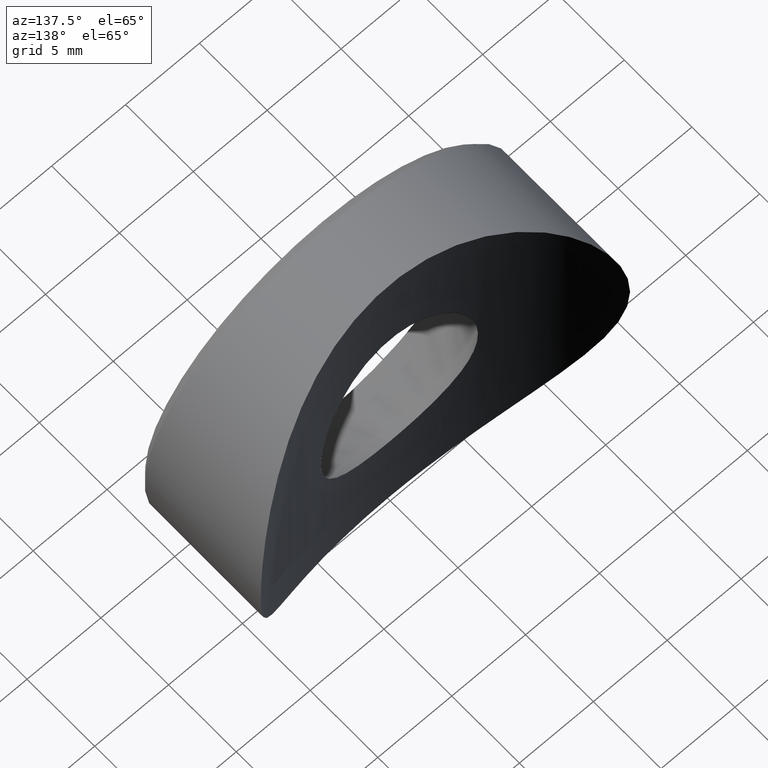
[diagram: clean part render]
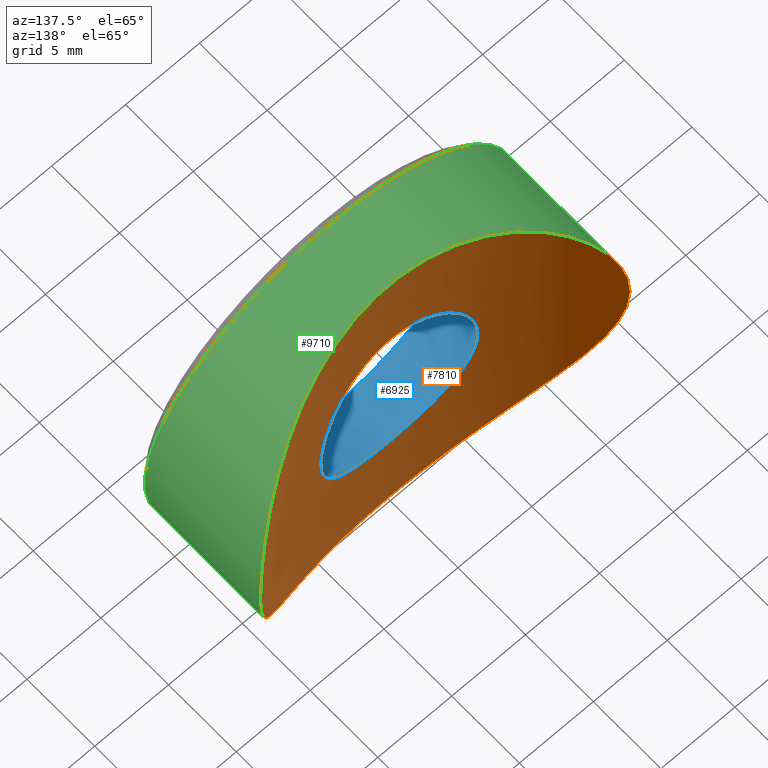
[diagram: same view with three faces highlighted in distinct colors, each labeled with its STEP entity id]
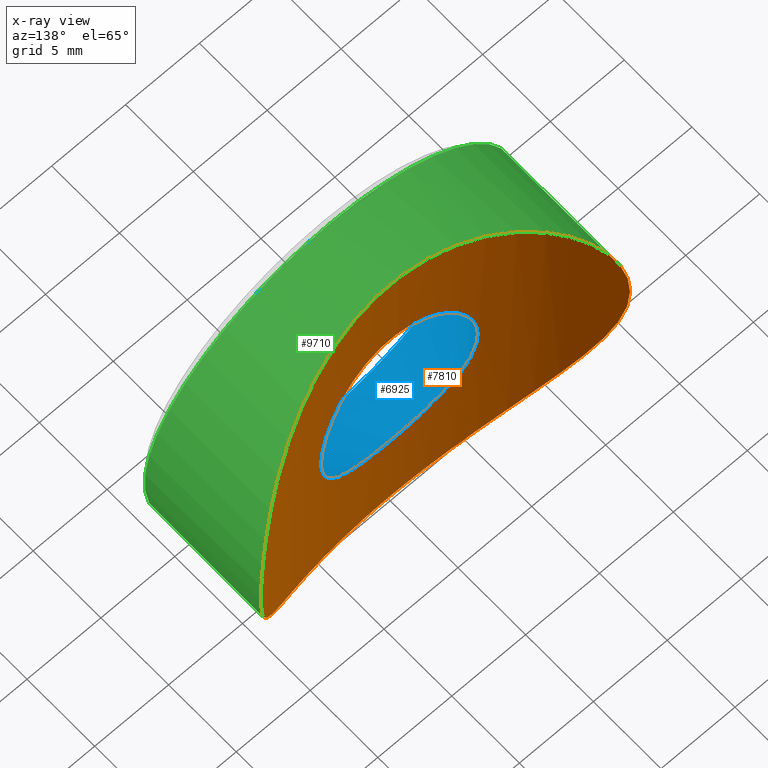
[diagram: x-ray of the same camera — body ghosted, the three highlighted faces saturated]
A machine part, auxiliary view with three faces highlighted in distinct colors.
The next image is the same camera in x-ray (body ghosted, the three faces saturated) — at least one of them is partly hidden behind the body in this view.
Their STEP definitions:

[orange] entity #7810 — the highlighted cylindrical surface (partial cylindrical patch) has radius 21.2 mm, axis along (-0, -0, 1).
#10 = CARTESIAN_POINT ( 'NONE',  ( -2.500996553080426565, 5.147402168726771698, 5.294553892242304549 ) ) ;
#35 = CARTESIAN_POINT ( 'NONE',  ( -12.41862256727138458, 9.016905337360775263, -1.651010921461087078 ) ) ;
#63 = CARTESIAN_POINT ( 'NONE',  ( -4.913531057895813348, 5.576954840356072474, 2.324377969651502340 ) ) ;
#83 = CARTESIAN_POINT ( 'NONE',  ( -12.17098533677777006, 8.841505016409652029, -2.879517635772013140 ) ) ;
#122 = CARTESIAN_POINT ( 'NONE',  ( -1.687338429905864023, 5.063100790062737389, -12.39272775788955805 ) ) ;
#173 = CARTESIAN_POINT ( 'NONE',  ( -12.32689167703546396, 8.951863577055028998, 2.114099712051316082 ) ) ;
#217 = CARTESIAN_POINT ( 'NONE',  ( -8.269473890835500995, 6.669475764084465297, 9.407568716005741294 ) ) ;
#269 = FACE_BOUND ( 'NONE', #871, .T. ) ;
#466 = CARTESIAN_POINT ( 'NONE',  ( 0.000000000000000000, 26.20000000000000284, -12.50000000000000000 ) ) ;
#759 = CARTESIAN_POINT ( 'NONE',  ( 3.530113729805322453, 5.294074132785927311, -4.497871122518575682 ) ) ;
#761 = EDGE_CURVE ( 'NONE', #6300, #6300, #12284, .T. ) ;
#821 = CARTESIAN_POINT ( 'NONE',  ( 7.669388386453538153, 6.433056659521247944, 9.878870967313789109 ) ) ;
#866 = CARTESIAN_POINT ( 'NONE',  ( 1.676423256818145857, 5.050540661257573838, -12.41481697399196449 ) ) ;
#871 = EDGE_LOOP ( 'NONE', ( #4230 ) ) ;
#877 = FACE_OUTER_BOUND ( 'NONE', #10650, .T. ) ;
#884 = CARTESIAN_POINT ( 'NONE',  ( -5.304724048426837868, 5.674404423643697903, -0.5990951014909942085 ) ) ;
#904 = CARTESIAN_POINT ( 'NONE',  ( 5.647795805536169667, 5.751363379545573196, 11.18159297971594590 ) ) ;
#931 = CARTESIAN_POINT ( 'NONE',  ( -0.02706657521183614135, 4.999209284381999296, 6.003588920640057225 ) ) ;
#953 = CARTESIAN_POINT ( 'NONE',  ( 12.49919501678331457, 9.076620518322576103, -0.4461438054100652639 ) ) ;
#1001 = CARTESIAN_POINT ( 'NONE',  ( 5.613481757731692667, 5.742030268858448139, -11.19857959172153805 ) ) ;
#1022 = CARTESIAN_POINT ( 'NONE',  ( -2.962481950301601774, 5.207452750818779563, 4.981087246399126478 ) ) ;
#1041 = CARTESIAN_POINT ( 'NONE',  ( -6.294409402135960896, 5.952543933865495518, 10.80721504654117382 ) ) ;
#1063 = CARTESIAN_POINT ( 'NONE',  ( -1.670896420209646127, 5.062901745318248103, 5.709274852677513223 ) ) ;
#1083 = CARTESIAN_POINT ( 'NONE',  ( -5.210731716249695999, 5.646683703541289567, 11.36952377481486920 ) ) ;
#1130 = CARTESIAN_POINT ( 'NONE',  ( -2.863592469743283075, 5.190269696929595611, 12.17469465744054169 ) ) ;
#1169 = CARTESIAN_POINT ( 'NONE',  ( -11.21211515089159327, 8.203628649496739200, -5.585867048144680602 ) ) ;
#1499 = CARTESIAN_POINT ( 'NONE',  ( -0.7063490329553455682, 5.010995239869552975, -5.950058779752661842 ) ) ;
#1577 = CARTESIAN_POINT ( 'NONE',  ( -3.193240740635249875, 5.239741701969882648, -4.808020735259507461 ) ) ;
#1656 = CARTESIAN_POINT ( 'NONE',  ( 2.667004052386587443, 5.165919274747112766, -5.201806049838279655 ) ) ;
#1703 = CARTESIAN_POINT ( 'NONE',  ( 4.290320877685540601, 5.438432291869601976, 3.543659104317468778 ) ) ;
#1748 = CARTESIAN_POINT ( 'NONE',  ( 4.772146667498423867, 5.543366567749609786, -2.671326805265044069 ) ) ;
#1767 = CARTESIAN_POINT ( 'NONE',  ( 9.127992693157246151, 7.063248152012964631, -8.549141411981464600 ) ) ;
#1811 = CARTESIAN_POINT ( 'NONE',  ( 2.932244745556737975, 5.199808299411353474, 12.15823469850293215 ) ) ;
#1856 = CARTESIAN_POINT ( 'NONE',  ( 11.68652277004576945, 8.511014699462716493, 4.454256559431580165 ) ) ;
#1882 = CARTESIAN_POINT ( 'NONE',  ( 2.122652524854190315, 5.105851959775926652, 5.501754509585950359 ) ) ;
#1934 = CARTESIAN_POINT ( 'NONE',  ( -4.769769056573216481, 5.539722049137518312, -2.759028797949947265 ) ) ;
#1955 = CARTESIAN_POINT ( 'NONE',  ( 9.903986597291352112, 7.453464785562725403, -7.636820801167754524 ) ) ;
#1997 = CARTESIAN_POINT ( 'NONE',  ( -9.928336298212721900, 7.461512212161455437, -7.636793946274798905 ) ) ;
#2047 = CARTESIAN_POINT ( 'NONE',  ( -11.19067784627403483, 8.190226841971355753, 5.628647762989838377 ) ) ;
#2069 = CARTESIAN_POINT ( 'NONE',  ( -0.9493562623376409215, 5.020468357132465975, 5.906622997979754430 ) ) ;
#2134 = CARTESIAN_POINT ( 'NONE',  ( -10.82241573850789962, 7.963275957336006350, -6.306171660458047334 ) ) ;
#2178 = CARTESIAN_POINT ( 'NONE',  ( -6.328732849168195784, 5.963274177688119515, -10.78710753548276813 ) ) ;
#2459 = CARTESIAN_POINT ( 'NONE',  ( -4.381125961227471777, 5.457634288351640883, -3.394635914508287833 ) ) ;
#2511 = CARTESIAN_POINT ( 'NONE',  ( -0.1532669367070206290, 4.999746397489698069, -6.001163097698860582 ) ) ;
#2784 = CARTESIAN_POINT ( 'NONE',  ( 5.106635658602499461, 5.624160728028866352, 1.690040394588100181 ) ) ;
#2808 = CARTESIAN_POINT ( 'NONE',  ( 9.430314418311287028, 7.202813795485583093, 8.243591745573995766 ) ) ;
#2853 = CARTESIAN_POINT ( 'NONE',  ( 9.934289938956274213, 7.464666165255247066, 7.629149565451515791 ) ) ;
#2876 = CARTESIAN_POINT ( 'NONE',  ( -4.381125961227471777, 5.457634288351640883, -3.394635914508287833 ) ) ;
#2895 = CARTESIAN_POINT ( 'NONE',  ( 4.482805620984363415, 5.475753825394668262, -11.67569245670671663 ) ) ;
#2937 = CARTESIAN_POINT ( 'NONE',  ( 11.37245882308105749, 8.307482129818948735, 5.204074967692459808 ) ) ;
#3054 = CARTESIAN_POINT ( 'NONE',  ( 1.616272383926975920, 5.058982883560424249, 5.728808705005857149 ) ) ;
#3072 = CARTESIAN_POINT ( 'NONE',  ( -4.102223697870059027, 5.385930634531378658, -11.83667796629568159 ) ) ;
#3111 = CARTESIAN_POINT ( 'NONE',  ( -4.381125961227470889, 5.457634288351642660, -3.394635914508288721 ) ) ;
#3116 = CARTESIAN_POINT ( 'NONE',  ( -7.336495361996330900, 6.306796367593365815, -10.12849901508363359 ) ) ;
#3159 = CARTESIAN_POINT ( 'NONE',  ( -8.572369642296433057, 6.807943780861746674, -9.106363304394257341 ) ) ;
#3492 = CARTESIAN_POINT ( 'NONE',  ( -2.285489574133477308, 5.120817550442366972, -5.429327497769909527 ) ) ;
#3654 = CARTESIAN_POINT ( 'NONE',  ( 5.134211477340656415, 5.630778255895362960, -1.614620763768730871 ) ) ;
#3756 = CARTESIAN_POINT ( 'NONE',  ( 12.32774798319113252, 8.952476634001637734, -2.109115320088166712 ) ) ;
#3784 = CARTESIAN_POINT ( 'NONE',  ( 5.002227811677930625, 5.598529023009642280, 2.046441311723333101 ) ) ;
#3826 = CARTESIAN_POINT ( 'NONE',  ( 1.496234186248440068, 5.052109080368959226, -5.759612989172651965 ) ) ;
#3894 = CARTESIAN_POINT ( 'NONE',  ( 0.8470682063936681994, 5.000000000000000000, -12.49999999999999822 ) ) ;
#3919 = CARTESIAN_POINT ( 'NONE',  ( -5.330040979364347287, 5.680964102755895695, 0.1408898937144497931 ) ) ;
#3939 = CARTESIAN_POINT ( 'NONE',  ( 10.81462088491997697, 7.964477176857956309, 6.281524047202232452 ) ) ;
#3956 = CARTESIAN_POINT ( 'NONE',  ( -5.261678490049016332, 5.663186707577363421, -0.9675287237307951260 ) ) ;
#4040 = CARTESIAN_POINT ( 'NONE',  ( -5.312027168931196641, 5.676233789023074294, 0.5144304136496098412 ) ) ;
#4059 = CARTESIAN_POINT ( 'NONE',  ( -11.81049691516648892, 8.593912632855165157, 4.114969640188157918 ) ) ;
#4107 = CARTESIAN_POINT ( 'NONE',  ( -12.49929901301702273, 9.076696437272538276, 0.4410474172697078088 ) ) ;
#4136 = CYLINDRICAL_SURFACE ( 'NONE', #9701, 21.19999999999999929 ) ;
#4149 = CARTESIAN_POINT ( 'NONE',  ( -8.273932753175506249, 6.678397691404537539, -9.378295391757530908 ) ) ;
#4230 = ORIENTED_EDGE ( 'NONE', *, *, #7804, .T. ) ;
#4729 = CARTESIAN_POINT ( 'NONE',  ( 5.304788452078313732, 5.674421069864916234, 0.6001871274095151865 ) ) ;
#4747 = CARTESIAN_POINT ( 'NONE',  ( 1.572093150103981429E-15, 5.000000000000002665, -12.50000000000000533 ) ) ;
#4790 = CARTESIAN_POINT ( 'NONE',  ( 8.586112571488605738, 6.814060524724989243, 9.093298611268730625 ) ) ;
#4816 = CARTESIAN_POINT ( 'NONE',  ( 0.03513826803275227340, 4.999206381796400755, -6.003602678107523793 ) ) ;
#4836 = CARTESIAN_POINT ( 'NONE',  ( 7.349014629886386096, 6.311426228007018580, 10.11940756783445217 ) ) ;
#4882 = CARTESIAN_POINT ( 'NONE',  ( 6.324834532464548964, 5.952949940773299531, -10.81220636182570161 ) ) ;
#4905 = CARTESIAN_POINT ( 'NONE',  ( 0.1586420318616700298, 4.999774350366176456, 6.001037144332545203 ) ) ;
#4927 = CARTESIAN_POINT ( 'NONE',  ( 3.331865643065689220, 5.259623356017657514, 12.05485794112923870 ) ) ;
#4973 = CARTESIAN_POINT ( 'NONE',  ( -7.656642738274349824, 6.428132564740860921, -9.888690997172561836 ) ) ;
#4999 = CARTESIAN_POINT ( 'NONE',  ( -0.3972348401884035485, 5.002913783996898900, 5.986783015843602840 ) ) ;
#5045 = CARTESIAN_POINT ( 'NONE',  ( -2.659635697190260384, 5.166938471225832608, 5.194696390050379975 ) ) ;
#5063 = CARTESIAN_POINT ( 'NONE',  ( -12.06737213083675009, 8.768988916291720059, -3.286140337371728393 ) ) ;
#5102 = CARTESIAN_POINT ( 'NONE',  ( -5.578413543441999245, 5.743696100954909234, 11.19360483143060314 ) ) ;
#5137 = CARTESIAN_POINT ( 'NONE',  ( -9.398413120064487813, 7.186967464775806391, 8.279877921936988017 ) ) ;
#5416 = CARTESIAN_POINT ( 'NONE',  ( -1.778095190339635590, 5.074015376132314792, -5.655947277467224588 ) ) ;
#5667 = CARTESIAN_POINT ( 'NONE',  ( 0.5954312789231720471, 5.005071348309497736, -5.976993742316299318 ) ) ;
#5725 = CARTESIAN_POINT ( 'NONE',  ( 12.47681261948977927, 9.060223238564544701, -0.8680168513804158437 ) ) ;
#5787 = CARTESIAN_POINT ( 'NONE',  ( -4.431876777527810063, 5.467686212567393511, 3.331873415900365565 ) ) ;
#5853 = CARTESIAN_POINT ( 'NONE',  ( 12.05721564495491549, 8.761943673555569134, -3.323448259011979822 ) ) ;
#5949 = CARTESIAN_POINT ( 'NONE',  ( 1.713227552535517173, 5.065249937943206326, 12.38906330474607209 ) ) ;
#5971 = CARTESIAN_POINT ( 'NONE',  ( 3.206232245269673431, 5.241736406044507746, 4.796961108205454849 ) ) ;
#5988 = CARTESIAN_POINT ( 'NONE',  ( -9.913942447428349070, 7.453907114243851773, 7.655162277585185748 ) ) ;
#6033 = CARTESIAN_POINT ( 'NONE',  ( -3.315778097450034601, 5.244980568409910227, -12.08060618271522380 ) ) ;
#6075 = CARTESIAN_POINT ( 'NONE',  ( -3.269966712130724318, 5.249793082120177701, 12.07191968146351790 ) ) ;
#6117 = CARTESIAN_POINT ( 'NONE',  ( -11.66738621306040891, 8.498364512820513639, 4.504201985925215368 ) ) ;
#6300 = VERTEX_POINT ( 'NONE', #9011 ) ;
#6408 = DIRECTION ( 'NONE',  ( 1.000000000000000000, 0.000000000000000000, 0.000000000000000000 ) ) ;
#6622 = CARTESIAN_POINT ( 'NONE',  ( 4.577104548936932638, 5.499074859339016186, 3.073050957476628486 ) ) ;
#6723 = CARTESIAN_POINT ( 'NONE',  ( 12.17228595876718167, 8.842421267620830250, 2.873660678248262546 ) ) ;
#6793 = CARTESIAN_POINT ( 'NONE',  ( -5.213008597058720994, 5.650860030325033811, 1.256035193367366354 ) ) ;
#6814 = CARTESIAN_POINT ( 'NONE',  ( 12.06926384379494976, 8.770297847659280777, 3.279300766696196412 ) ) ;
#6835 = CARTESIAN_POINT ( 'NONE',  ( 3.966863100438195122, 5.374135297933487543, 3.993509678258165163 ) ) ;
#6857 = CARTESIAN_POINT ( 'NONE',  ( 2.895755586259734837, 5.194712429987408342, -12.16702997625449001 ) ) ;
#6901 = CARTESIAN_POINT ( 'NONE',  ( 10.81544325717643318, 7.959150618809808897, -6.317922650166285514 ) ) ;
#6926 = CARTESIAN_POINT ( 'NONE',  ( -5.133181887297090462, 5.630526919107900596, 1.617957501765894479 ) ) ;
#6950 = CARTESIAN_POINT ( 'NONE',  ( -9.422887049072551591, 7.198982595083049496, -8.252556896111416407 ) ) ;
#6979 = CARTESIAN_POINT ( 'NONE',  ( 3.476868023079237702, 5.285538969447107327, 4.549847877814394259 ) ) ;
#6999 = CARTESIAN_POINT ( 'NONE',  ( -4.455185756930840846, 5.469783993594124816, 11.68627895251742466 ) ) ;
#7041 = CARTESIAN_POINT ( 'NONE',  ( -1.638860176161355930, 5.047462225891351295, 12.42004608130415910 ) ) ;
#7081 = CARTESIAN_POINT ( 'NONE',  ( -12.47695839651495398, 9.060328210071190824, 0.8670952510020283333 ) ) ;
#7124 = CARTESIAN_POINT ( 'NONE',  ( 1.572093150103981429E-15, 5.000000000000002665, -12.50000000000000533 ) ) ;
#7418 = CARTESIAN_POINT ( 'NONE',  ( -1.068531944824921309, 5.026169662432915075, -5.880377437454941791 ) ) ;
#7503 = CARTESIAN_POINT ( 'NONE',  ( -3.966354129203598422, 5.372821910620134922, -4.008420132851074236 ) ) ;
#7668 = CARTESIAN_POINT ( 'NONE',  ( 4.235341550749168960, 5.426093094768653202, -3.642232123842571667 ) ) ;
#7711 = CARTESIAN_POINT ( 'NONE',  ( 2.016588678704203552, 5.095427182499705054, -5.552630993996872988 ) ) ;
#7735 = CARTESIAN_POINT ( 'NONE',  ( 9.395496338682260529, 7.193522640550361835, -8.254370419255691260 ) ) ;
#7760 = CARTESIAN_POINT ( 'NONE',  ( 0.9605561518815187716, 5.018749795304137784, -5.915276360705308711 ) ) ;
#7781 = CARTESIAN_POINT ( 'NONE',  ( 4.094339637555057365, 5.395195978876020426, -11.81778697094051012 ) ) ;
#7803 = CARTESIAN_POINT ( 'NONE',  ( -5.037100171776286217, 5.606518875591484985, -2.067956837480070753 ) ) ;
#7804 = EDGE_CURVE ( 'NONE', #8924, #8924, #8514, .T. ) ;
#7810 = ADVANCED_FACE ( 'NONE', ( #269, #877 ), #4136, .F. ) ;
#7818 = CARTESIAN_POINT ( 'NONE',  ( 4.513171299523977886, 5.482317477689297114, 11.66405545157511980 ) ) ;
#7842 = CARTESIAN_POINT ( 'NONE',  ( -4.234391708261713738, 5.425904232366162816, 3.643549326040596004 ) ) ;
#7854 = CARTESIAN_POINT ( 'NONE',  ( 8.272028121311569393, 6.677599528267620599, -9.379946797398345026 ) ) ;
#7881 = CARTESIAN_POINT ( 'NONE',  ( 0.7186430215249501874, 5.011398008853935160, 5.948223027483876990 ) ) ;
#7905 = CARTESIAN_POINT ( 'NONE',  ( -10.80751170322993637, 7.954454129380865268, 6.331307537281122499 ) ) ;
#7925 = CARTESIAN_POINT ( 'NONE',  ( 2.763631091640988302, 5.180377555474573903, 5.124806235637761276 ) ) ;
#7946 = CARTESIAN_POINT ( 'NONE',  ( -6.672538813375512134, 6.074371047319107930, -10.57770685352647710 ) ) ;
#7988 = CARTESIAN_POINT ( 'NONE',  ( -5.245974301967642361, 5.655580214384937854, -11.35345981449638408 ) ) ;
#8034 = CARTESIAN_POINT ( 'NONE',  ( -11.68467236997706848, 8.509786361046645098, -4.459180509397983272 ) ) ;
#8081 = CARTESIAN_POINT ( 'NONE',  ( -6.644218292355433597, 6.064923310656248567, 10.59569941213782229 ) ) ;
#8362 = DIRECTION ( 'NONE',  ( -0.000000000000000000, -0.000000000000000000, 1.000000000000000000 ) ) ;
#8399 = CARTESIAN_POINT ( 'NONE',  ( -0.5233201495120706204, 5.005652178334118574, -5.974340784794369696 ) ) ;
#8514 = B_SPLINE_CURVE_WITH_KNOTS ( 'NONE', 3,
 ( #2459, #8526, #7503, #9364, #1577, #10456, #3492, #5416, #11460, #12353, #7418, #1499, #8399, #2511, #4816, #5667, #7760, #3826, #9685, #7711, #9732, #1656, #8681, #759, #10711, #7668, #8603, #1748, #11715, #3654, #12516, #10537, #11540, #4729, #11628, #12556, #2784, #3784, #11672, #12680, #6622, #1703, #10933, #6835, #11851, #6979, #5971, #7925, #12805, #8900, #1882, #3054, #9815, #7881, #9857, #4905, #931, #4999, #12723, #2069, #9772, #1063, #11805, #10, #5045, #1022, #9944, #8767, #11895, #7842, #5787, #11758, #63, #6926, #6793, #4040, #3919, #884, #3956, #7803, #1934, #2876 ),
 .UNSPECIFIED., .T., .F.,
 ( 4, 2, 2, 2, 2, 2, 2, 2, 2, 2, 2, 2, 2, 2, 2, 2, 2, 2, 2, 2, 2, 2, 2, 2, 2, 2, 2, 2, 2, 2, 2, 2, 2, 2, 2, 2, 2, 2, 2, 2, 4 ),
 ( 0.000000000000000000, 0.001113752218825424765, 0.002227504437650849531, 0.003341256656476274296, 0.003898132765888986679, 0.004455008875301699062, 0.005011884984714411011, 0.005568761094127124694, 0.006682513312952548593, 0.007239389422365261409, 0.007796265531777973358, 0.008910017750603399858, 0.01002376996942882723, 0.01113752218825425459, 0.01225127440707968023, 0.01336502662590510586, 0.01447877884473053496, 0.01559253106355596059, 0.01614940717296867514, 0.01670628328238139143, 0.01782003550120681706, 0.01837691161061953335, 0.01893378772003224964, 0.02004753993885767527, 0.02060441604827039502, 0.02116129215768311131, 0.02227504437650854041, 0.02283192048592125323, 0.02338879659533397298, 0.02394567270474668927, 0.02450254881415940555, 0.02561630103298483119, 0.02617317714239755094, 0.02673005325181026376, 0.02784380547063569633, 0.02895755768946112543, 0.03007130990828655107, 0.03118506212711198017, 0.03229881434593740580, 0.03341256656476283837, 0.03564007100241369658 ),
 .UNSPECIFIED. ) ;
#8526 = CARTESIAN_POINT ( 'NONE',  ( -4.186804413554598980, 5.416590407958702613, -3.712439472787458783 ) ) ;
#8603 = CARTESIAN_POINT ( 'NONE',  ( 4.434630336531260042, 5.468286555405085458, -3.326924963704463334 ) ) ;
#8663 = CARTESIAN_POINT ( 'NONE',  ( 11.19665781067259580, 8.194005773660666847, -5.616006014043237293 ) ) ;
#8681 = CARTESIAN_POINT ( 'NONE',  ( 2.973083989160954843, 5.207615406909930300, -4.984721501314377967 ) ) ;
#8704 = CARTESIAN_POINT ( 'NONE',  ( 2.122925318285208363, 5.102623414218037112, 12.32533643860115546 ) ) ;
#8767 = CARTESIAN_POINT ( 'NONE',  ( -3.525132449830433057, 5.293236112778303415, 4.502789587709462360 ) ) ;
#8832 = CARTESIAN_POINT ( 'NONE',  ( 12.50154562933544966, 9.078336510663104875, 0.8228233883339811650 ) ) ;
#8900 = CARTESIAN_POINT ( 'NONE',  ( 2.289239947801994912, 5.123343686691373300, 5.415601271324029575 ) ) ;
#8924 = VERTEX_POINT ( 'NONE', #3111 ) ;
#9011 = CARTESIAN_POINT ( 'NONE',  ( 0.000000000000000000, 5.000000000000000888, -12.50000000000000000 ) ) ;
#9016 = CARTESIAN_POINT ( 'NONE',  ( -7.653510990891769339, 6.416886758621692444, 9.916234189837000557 ) ) ;
#9060 = CARTESIAN_POINT ( 'NONE',  ( -5.616034635890288840, 5.754020286324120548, -11.17473504950745244 ) ) ;
#9364 = CARTESIAN_POINT ( 'NONE',  ( -3.470917876149521408, 5.284550175957943630, -4.555585536269459723 ) ) ;
#9658 = CARTESIAN_POINT ( 'NONE',  ( 11.81060179249552000, 8.593979925823784782, -4.114783437603610317 ) ) ;
#9685 = CARTESIAN_POINT ( 'NONE',  ( 1.673664140357400631, 5.065467309317389422, -5.696655799631182404 ) ) ;
#9701 = AXIS2_PLACEMENT_3D ( 'NONE', #466, #8362, #6408 ) ;
#9708 = CARTESIAN_POINT ( 'NONE',  ( 8.288303705805668997, 6.684478256313675537, 9.365662362664572527 ) ) ;
#9732 = CARTESIAN_POINT ( 'NONE',  ( 2.182866329250244153, 5.112054148599469272, -5.471453249307131728 ) ) ;
#9752 = CARTESIAN_POINT ( 'NONE',  ( 11.82618754708425435, 8.604462641009339663, 4.069672142910226498 ) ) ;
#9764 = ORIENTED_EDGE ( 'NONE', *, *, #761, .F. ) ;
#9772 = CARTESIAN_POINT ( 'NONE',  ( -1.133562165233517272, 5.029566816280399699, 5.864789326565467142 ) ) ;
#9815 = CARTESIAN_POINT ( 'NONE',  ( 1.265614553061000791, 5.034664464520706595, 5.841339960043574031 ) ) ;
#9857 = CARTESIAN_POINT ( 'NONE',  ( 0.5313386449647521381, 5.005840093694864379, 5.973486292118822760 ) ) ;
#9944 = CARTESIAN_POINT ( 'NONE',  ( -3.107619592712189238, 5.228530470584270340, 4.866846072647987853 ) ) ;
#9965 = CARTESIAN_POINT ( 'NONE',  ( -0.8079972989937805883, 4.998513916675149105, 12.50252040504168782 ) ) ;
#10008 = CARTESIAN_POINT ( 'NONE',  ( -2.099102775880445471, 5.100223378463153878, -12.32944139325207189 ) ) ;
#10047 = CARTESIAN_POINT ( 'NONE',  ( 0.4611387444794077806, 5.000794378031764964, 12.49865273086488315 ) ) ;
#10456 = CARTESIAN_POINT ( 'NONE',  ( -2.601470527194029714, 5.158099766324954594, -5.243417167712930649 ) ) ;
#10537 = CARTESIAN_POINT ( 'NONE',  ( 5.311361477614281235, 5.676062777694633965, -0.5199467569352941299 ) ) ;
#10640 = CARTESIAN_POINT ( 'NONE',  ( 7.655695992828436047, 6.427774827201249153, -9.889396848503119841 ) ) ;
#10650 = EDGE_LOOP ( 'NONE', ( #9764 ) ) ;
#10688 = CARTESIAN_POINT ( 'NONE',  ( 8.566258207813087111, 6.805290870579106866, -9.111931178705395595 ) ) ;
#10711 = CARTESIAN_POINT ( 'NONE',  ( 3.781823746651669094, 5.338764770321422048, -4.228821133872041393 ) ) ;
#10729 = CARTESIAN_POINT ( 'NONE',  ( 11.19805392773989183, 8.197391695942748413, 5.569304936125898386 ) ) ;
#10814 = CARTESIAN_POINT ( 'NONE',  ( 10.60481078463473281, 7.841250019548180461, 6.629404056392552036 ) ) ;
#10907 = CARTESIAN_POINT ( 'NONE',  ( -12.05651672621448256, 8.761463530639835184, 3.325840788934108172 ) ) ;
#10933 = CARTESIAN_POINT ( 'NONE',  ( 4.187551098930735627, 5.417385649532878489, 3.696453373422599054 ) ) ;
#10954 = CARTESIAN_POINT ( 'NONE',  ( -12.15983515392658099, 8.833685551873173836, 2.925762300528361948 ) ) ;
#11001 = CARTESIAN_POINT ( 'NONE',  ( 0.8833824490581015931, 5.014333990146249143, 12.47572337239282625 ) ) ;
#11047 = CARTESIAN_POINT ( 'NONE',  ( -0.8507025057337239682, 5.012930253694305449, -12.47810552547708873 ) ) ;
#11460 = CARTESIAN_POINT ( 'NONE',  ( -1.602117724714151370, 5.059877795464971406, -5.722994722359397102 ) ) ;
#11540 = CARTESIAN_POINT ( 'NONE',  ( 5.330101247744114978, 5.680979759566849197, -0.1456405679985690316 ) ) ;
#11628 = CARTESIAN_POINT ( 'NONE',  ( 5.261390450070122959, 5.663117823104280468, 0.9675455986201363379 ) ) ;
#11650 = CARTESIAN_POINT ( 'NONE',  ( 12.39108741169305539, 8.998146805373426815, -1.698605060607619732 ) ) ;
#11672 = CARTESIAN_POINT ( 'NONE',  ( 4.941849479920803034, 5.583916142112070879, 2.224030283143863418 ) ) ;
#11690 = CARTESIAN_POINT ( 'NONE',  ( 4.121136849898210386, 5.400554485282699879, 11.80835126970143101 ) ) ;
#11715 = CARTESIAN_POINT ( 'NONE',  ( 4.912579809832160471, 5.576722610985592965, -2.327462742496209547 ) ) ;
#11735 = CARTESIAN_POINT ( 'NONE',  ( 6.354645177679544510, 5.962608480267060251, 10.79398846037511639 ) ) ;
#11758 = CARTESIAN_POINT ( 'NONE',  ( -4.772087465635709513, 5.543341316367717653, 2.671838617532704685 ) ) ;
#11781 = CARTESIAN_POINT ( 'NONE',  ( 10.14524099158485271, 7.583349254718671162, -7.313280733592707250 ) ) ;
#11805 = CARTESIAN_POINT ( 'NONE',  ( -2.012332533841972193, 5.093177534535382023, 5.565842489576566798 ) ) ;
#11851 = CARTESIAN_POINT ( 'NONE',  ( 3.848365463268813791, 5.351836864528652704, 4.138296218116958691 ) ) ;
#11867 = CARTESIAN_POINT ( 'NONE',  ( -4.067326027178807202, 5.389889207669833482, 11.82712078583723070 ) ) ;
#11895 = CARTESIAN_POINT ( 'NONE',  ( -3.781714668500968379, 5.338749743415130311, 4.228873353182836858 ) ) ;
#11919 = CARTESIAN_POINT ( 'NONE',  ( -12.39063291684614221, 8.997818283286985519, 1.702516056501141462 ) ) ;
#11961 = CARTESIAN_POINT ( 'NONE',  ( -11.82444322885114651, 8.603291220454529764, -4.074644866570976021 ) ) ;
#12004 = CARTESIAN_POINT ( 'NONE',  ( -12.50135234802644923, 9.078195412194805414, -0.8210871055179241873 ) ) ;
#12053 = CARTESIAN_POINT ( 'NONE',  ( -0.4235341031968348213, 5.000000000000003553, -12.50000000000000711 ) ) ;
#12284 = B_SPLINE_CURVE_WITH_KNOTS ( 'NONE', 3,
 ( #4747, #3894, #866, #6857, #12742, #7781, #2895, #1001, #4882, #12828, #10640, #7854, #10688, #1767, #7735, #1955, #11781, #6901, #8663, #12700, #9658, #5853, #12784, #3756, #11650, #5725, #953, #8832, #12659, #6723, #6814, #9752, #1856, #2937, #10729, #3939, #10814, #2853, #2808, #4790, #9708, #821, #4836, #11735, #904, #7818, #11690, #4927, #1811, #8704, #5949, #11001, #10047, #9965, #7041, #1130, #6075, #11867, #6999, #1083, #5102, #1041, #8081, #9016, #217, #5137, #5988, #7905, #2047, #6117, #4059, #10907, #10954, #173, #11919, #7081, #4107, #12004, #35, #83, #5063, #11961, #8034, #1169, #2134, #1997, #6950, #3159, #4149, #4973, #3116, #7946, #2178, #9060, #7988, #3072, #6033, #10008, #122, #11047, #12053, #7124 ),
 .UNSPECIFIED., .T., .F.,
 ( 4, 2, 2, 2, 2, 2, 2, 2, 2, 2, 2, 2, 2, 2, 2, 2, 2, 2, 2, 2, 2, 2, 2, 2, 2, 2, 2, 2, 2, 2, 2, 2, 2, 2, 2, 2, 2, 2, 2, 2, 2, 2, 2, 2, 2, 2, 2, 2, 2, 2, 4 ),
 ( 0.000000000000000000, 0.002501514599363625826, 0.003752271899045439823, 0.005003029198727253386, 0.007504543798090876176, 0.008755301097772685837, 0.01000605839745449810, 0.01125681569713630863, 0.01250757299681811742, 0.01500908759618174021, 0.01625984489586355247, 0.01751060219554536126, 0.01876135949522717353, 0.02001211679490898232, 0.02251363139427260338, 0.02376438869395441217, 0.02501514599363622096, 0.02626590329331802975, 0.02751666059299983855, 0.03001817519236345960, 0.03126893249204526493, 0.03251968979172707719, 0.03502120439109069477, 0.03627196169077250010, 0.03752271899045431236, 0.03877347629013611768, 0.04002423358981792995, 0.04252574818918154753, 0.04377650548886334592, 0.04502726278854515124, 0.04627802008822694962, 0.04752877738790876189, 0.05003029198727237947, 0.05253180658663599706, 0.05503332118599961464, 0.05628407848568141303, 0.05753483578536321835, 0.05878559308504502368, 0.06003635038472682900, 0.06253786498409044659, 0.06378862228377224497, 0.06503937958345405723, 0.06754089418281766788, 0.07004240878218129240, 0.07129316608186309079, 0.07254392338154490305, 0.07379468068122670144, 0.07504543798090849982, 0.07754695258027212434, 0.07879770987995393661, 0.08004846717963574887 ),
 .UNSPECIFIED. ) ;
#12353 = CARTESIAN_POINT ( 'NONE',  ( -1.247685737859094424, 5.036001598798462098, -5.834976882581811353 ) ) ;
#12516 = CARTESIAN_POINT ( 'NONE',  ( 5.213338514385014832, 5.650945000184401934, -1.253031824961366336 ) ) ;
#12556 = CARTESIAN_POINT ( 'NONE',  ( 5.151019043606624770, 5.635262156634516906, 1.510440527229488739 ) ) ;
#12659 = CARTESIAN_POINT ( 'NONE',  ( 12.41812779546616063, 9.016564903767340766, 1.652267132855542053 ) ) ;
#12680 = CARTESIAN_POINT ( 'NONE',  ( 4.739784670713667936, 5.536176516774275136, 2.743118451426808768 ) ) ;
#12700 = CARTESIAN_POINT ( 'NONE',  ( 11.66958765553431832, 8.499831427303684350, -4.498265373404223055 ) ) ;
#12723 = CARTESIAN_POINT ( 'NONE',  ( -0.5816944477440736394, 5.007183540323608462, 5.967424450621969356 ) ) ;
#12742 = CARTESIAN_POINT ( 'NONE',  ( 3.298053735012402843, 5.254204980808160563, -12.06426738426982226 ) ) ;
#12784 = CARTESIAN_POINT ( 'NONE',  ( 12.16098486383601518, 8.834491664817763379, -2.920990399171967677 ) ) ;
#12805 = CARTESIAN_POINT ( 'NONE',  ( 2.609945091423535146, 5.160650021740237570, 5.226897935887524937 ) ) ;
#12828 = CARTESIAN_POINT ( 'NONE',  ( 7.332620007982915133, 6.305294025557941495, -10.13148648456724743 ) ) ;

[blue] entity #6925 — the highlighted conical surface has half-angle 45 deg.
#10 = CARTESIAN_POINT ( 'NONE',  ( -2.500996553080426565, 5.147402168726771698, 5.294553892242304549 ) ) ;
#63 = CARTESIAN_POINT ( 'NONE',  ( -4.913531057895813348, 5.576954840356072474, 2.324377969651502340 ) ) ;
#86 = AXIS2_PLACEMENT_3D ( 'NONE', #632, #3819, #2067 ) ;
#192 = CIRCLE ( 'NONE', #86, 11.00000000000000000 ) ;
#605 = VERTEX_POINT ( 'NONE', #12001 ) ;
#632 = CARTESIAN_POINT ( 'NONE',  ( 0.000000000000000000, 0.000000000000000000, 0.000000000000000000 ) ) ;
#731 = EDGE_CURVE ( 'NONE', #605, #605, #192, .T. ) ;
#759 = CARTESIAN_POINT ( 'NONE',  ( 3.530113729805322453, 5.294074132785927311, -4.497871122518575682 ) ) ;
#884 = CARTESIAN_POINT ( 'NONE',  ( -5.304724048426837868, 5.674404423643697903, -0.5990951014909942085 ) ) ;
#931 = CARTESIAN_POINT ( 'NONE',  ( -0.02706657521183614135, 4.999209284381999296, 6.003588920640057225 ) ) ;
#1022 = CARTESIAN_POINT ( 'NONE',  ( -2.962481950301601774, 5.207452750818779563, 4.981087246399126478 ) ) ;
#1063 = CARTESIAN_POINT ( 'NONE',  ( -1.670896420209646127, 5.062901745318248103, 5.709274852677513223 ) ) ;
#1210 = FACE_BOUND ( 'NONE', #4981, .T. ) ;
#1499 = CARTESIAN_POINT ( 'NONE',  ( -0.7063490329553455682, 5.010995239869552975, -5.950058779752661842 ) ) ;
#1577 = CARTESIAN_POINT ( 'NONE',  ( -3.193240740635249875, 5.239741701969882648, -4.808020735259507461 ) ) ;
#1656 = CARTESIAN_POINT ( 'NONE',  ( 2.667004052386587443, 5.165919274747112766, -5.201806049838279655 ) ) ;
#1703 = CARTESIAN_POINT ( 'NONE',  ( 4.290320877685540601, 5.438432291869601976, 3.543659104317468778 ) ) ;
#1748 = CARTESIAN_POINT ( 'NONE',  ( 4.772146667498423867, 5.543366567749609786, -2.671326805265044069 ) ) ;
#1882 = CARTESIAN_POINT ( 'NONE',  ( 2.122652524854190315, 5.105851959775926652, 5.501754509585950359 ) ) ;
#1934 = CARTESIAN_POINT ( 'NONE',  ( -4.769769056573216481, 5.539722049137518312, -2.759028797949947265 ) ) ;
#2067 = DIRECTION ( 'NONE',  ( 0.000000000000000000, 0.000000000000000000, -1.000000000000000000 ) ) ;
#2069 = CARTESIAN_POINT ( 'NONE',  ( -0.9493562623376409215, 5.020468357132465975, 5.906622997979754430 ) ) ;
#2459 = CARTESIAN_POINT ( 'NONE',  ( -4.381125961227471777, 5.457634288351640883, -3.394635914508287833 ) ) ;
#2511 = CARTESIAN_POINT ( 'NONE',  ( -0.1532669367070206290, 4.999746397489698069, -6.001163097698860582 ) ) ;
#2525 = DIRECTION ( 'NONE',  ( 0.000000000000000000, 0.000000000000000000, -1.000000000000000000 ) ) ;
#2784 = CARTESIAN_POINT ( 'NONE',  ( 5.106635658602499461, 5.624160728028866352, 1.690040394588100181 ) ) ;
#2876 = CARTESIAN_POINT ( 'NONE',  ( -4.381125961227471777, 5.457634288351640883, -3.394635914508287833 ) ) ;
#2922 = AXIS2_PLACEMENT_3D ( 'NONE', #9336, #5386, #2525 ) ;
#3054 = CARTESIAN_POINT ( 'NONE',  ( 1.616272383926975920, 5.058982883560424249, 5.728808705005857149 ) ) ;
#3059 = CONICAL_SURFACE ( 'NONE', #2922, 11.00000000000000000, 0.7853981633974489451 ) ;
#3111 = CARTESIAN_POINT ( 'NONE',  ( -4.381125961227470889, 5.457634288351642660, -3.394635914508288721 ) ) ;
#3492 = CARTESIAN_POINT ( 'NONE',  ( -2.285489574133477308, 5.120817550442366972, -5.429327497769909527 ) ) ;
#3654 = CARTESIAN_POINT ( 'NONE',  ( 5.134211477340656415, 5.630778255895362960, -1.614620763768730871 ) ) ;
#3784 = CARTESIAN_POINT ( 'NONE',  ( 5.002227811677930625, 5.598529023009642280, 2.046441311723333101 ) ) ;
#3819 = DIRECTION ( 'NONE',  ( -0.000000000000000000, -1.000000000000000000, -0.000000000000000000 ) ) ;
#3826 = CARTESIAN_POINT ( 'NONE',  ( 1.496234186248440068, 5.052109080368959226, -5.759612989172651965 ) ) ;
#3919 = CARTESIAN_POINT ( 'NONE',  ( -5.330040979364347287, 5.680964102755895695, 0.1408898937144497931 ) ) ;
#3956 = CARTESIAN_POINT ( 'NONE',  ( -5.261678490049016332, 5.663186707577363421, -0.9675287237307951260 ) ) ;
#4040 = CARTESIAN_POINT ( 'NONE',  ( -5.312027168931196641, 5.676233789023074294, 0.5144304136496098412 ) ) ;
#4729 = CARTESIAN_POINT ( 'NONE',  ( 5.304788452078313732, 5.674421069864916234, 0.6001871274095151865 ) ) ;
#4816 = CARTESIAN_POINT ( 'NONE',  ( 0.03513826803275227340, 4.999206381796400755, -6.003602678107523793 ) ) ;
#4905 = CARTESIAN_POINT ( 'NONE',  ( 0.1586420318616700298, 4.999774350366176456, 6.001037144332545203 ) ) ;
#4981 = EDGE_LOOP ( 'NONE', ( #6073 ) ) ;
#4999 = CARTESIAN_POINT ( 'NONE',  ( -0.3972348401884035485, 5.002913783996898900, 5.986783015843602840 ) ) ;
#5045 = CARTESIAN_POINT ( 'NONE',  ( -2.659635697190260384, 5.166938471225832608, 5.194696390050379975 ) ) ;
#5363 = FACE_OUTER_BOUND ( 'NONE', #7494, .T. ) ;
#5386 = DIRECTION ( 'NONE',  ( -0.000000000000000000, -1.000000000000000000, -0.000000000000000000 ) ) ;
#5416 = CARTESIAN_POINT ( 'NONE',  ( -1.778095190339635590, 5.074015376132314792, -5.655947277467224588 ) ) ;
#5667 = CARTESIAN_POINT ( 'NONE',  ( 0.5954312789231720471, 5.005071348309497736, -5.976993742316299318 ) ) ;
#5787 = CARTESIAN_POINT ( 'NONE',  ( -4.431876777527810063, 5.467686212567393511, 3.331873415900365565 ) ) ;
#5971 = CARTESIAN_POINT ( 'NONE',  ( 3.206232245269673431, 5.241736406044507746, 4.796961108205454849 ) ) ;
#6073 = ORIENTED_EDGE ( 'NONE', *, *, #7804, .F. ) ;
#6423 = ORIENTED_EDGE ( 'NONE', *, *, #731, .T. ) ;
#6622 = CARTESIAN_POINT ( 'NONE',  ( 4.577104548936932638, 5.499074859339016186, 3.073050957476628486 ) ) ;
#6793 = CARTESIAN_POINT ( 'NONE',  ( -5.213008597058720994, 5.650860030325033811, 1.256035193367366354 ) ) ;
#6835 = CARTESIAN_POINT ( 'NONE',  ( 3.966863100438195122, 5.374135297933487543, 3.993509678258165163 ) ) ;
#6925 = ADVANCED_FACE ( 'NONE', ( #5363, #1210 ), #3059, .F. ) ;
#6926 = CARTESIAN_POINT ( 'NONE',  ( -5.133181887297090462, 5.630526919107900596, 1.617957501765894479 ) ) ;
#6979 = CARTESIAN_POINT ( 'NONE',  ( 3.476868023079237702, 5.285538969447107327, 4.549847877814394259 ) ) ;
#7418 = CARTESIAN_POINT ( 'NONE',  ( -1.068531944824921309, 5.026169662432915075, -5.880377437454941791 ) ) ;
#7494 = EDGE_LOOP ( 'NONE', ( #6423 ) ) ;
#7503 = CARTESIAN_POINT ( 'NONE',  ( -3.966354129203598422, 5.372821910620134922, -4.008420132851074236 ) ) ;
#7668 = CARTESIAN_POINT ( 'NONE',  ( 4.235341550749168960, 5.426093094768653202, -3.642232123842571667 ) ) ;
#7711 = CARTESIAN_POINT ( 'NONE',  ( 2.016588678704203552, 5.095427182499705054, -5.552630993996872988 ) ) ;
#7760 = CARTESIAN_POINT ( 'NONE',  ( 0.9605561518815187716, 5.018749795304137784, -5.915276360705308711 ) ) ;
#7803 = CARTESIAN_POINT ( 'NONE',  ( -5.037100171776286217, 5.606518875591484985, -2.067956837480070753 ) ) ;
#7804 = EDGE_CURVE ( 'NONE', #8924, #8924, #8514, .T. ) ;
#7842 = CARTESIAN_POINT ( 'NONE',  ( -4.234391708261713738, 5.425904232366162816, 3.643549326040596004 ) ) ;
#7881 = CARTESIAN_POINT ( 'NONE',  ( 0.7186430215249501874, 5.011398008853935160, 5.948223027483876990 ) ) ;
#7925 = CARTESIAN_POINT ( 'NONE',  ( 2.763631091640988302, 5.180377555474573903, 5.124806235637761276 ) ) ;
#8399 = CARTESIAN_POINT ( 'NONE',  ( -0.5233201495120706204, 5.005652178334118574, -5.974340784794369696 ) ) ;
#8514 = B_SPLINE_CURVE_WITH_KNOTS ( 'NONE', 3,
 ( #2459, #8526, #7503, #9364, #1577, #10456, #3492, #5416, #11460, #12353, #7418, #1499, #8399, #2511, #4816, #5667, #7760, #3826, #9685, #7711, #9732, #1656, #8681, #759, #10711, #7668, #8603, #1748, #11715, #3654, #12516, #10537, #11540, #4729, #11628, #12556, #2784, #3784, #11672, #12680, #6622, #1703, #10933, #6835, #11851, #6979, #5971, #7925, #12805, #8900, #1882, #3054, #9815, #7881, #9857, #4905, #931, #4999, #12723, #2069, #9772, #1063, #11805, #10, #5045, #1022, #9944, #8767, #11895, #7842, #5787, #11758, #63, #6926, #6793, #4040, #3919, #884, #3956, #7803, #1934, #2876 ),
 .UNSPECIFIED., .T., .F.,
 ( 4, 2, 2, 2, 2, 2, 2, 2, 2, 2, 2, 2, 2, 2, 2, 2, 2, 2, 2, 2, 2, 2, 2, 2, 2, 2, 2, 2, 2, 2, 2, 2, 2, 2, 2, 2, 2, 2, 2, 2, 4 ),
 ( 0.000000000000000000, 0.001113752218825424765, 0.002227504437650849531, 0.003341256656476274296, 0.003898132765888986679, 0.004455008875301699062, 0.005011884984714411011, 0.005568761094127124694, 0.006682513312952548593, 0.007239389422365261409, 0.007796265531777973358, 0.008910017750603399858, 0.01002376996942882723, 0.01113752218825425459, 0.01225127440707968023, 0.01336502662590510586, 0.01447877884473053496, 0.01559253106355596059, 0.01614940717296867514, 0.01670628328238139143, 0.01782003550120681706, 0.01837691161061953335, 0.01893378772003224964, 0.02004753993885767527, 0.02060441604827039502, 0.02116129215768311131, 0.02227504437650854041, 0.02283192048592125323, 0.02338879659533397298, 0.02394567270474668927, 0.02450254881415940555, 0.02561630103298483119, 0.02617317714239755094, 0.02673005325181026376, 0.02784380547063569633, 0.02895755768946112543, 0.03007130990828655107, 0.03118506212711198017, 0.03229881434593740580, 0.03341256656476283837, 0.03564007100241369658 ),
 .UNSPECIFIED. ) ;
#8526 = CARTESIAN_POINT ( 'NONE',  ( -4.186804413554598980, 5.416590407958702613, -3.712439472787458783 ) ) ;
#8603 = CARTESIAN_POINT ( 'NONE',  ( 4.434630336531260042, 5.468286555405085458, -3.326924963704463334 ) ) ;
#8681 = CARTESIAN_POINT ( 'NONE',  ( 2.973083989160954843, 5.207615406909930300, -4.984721501314377967 ) ) ;
#8767 = CARTESIAN_POINT ( 'NONE',  ( -3.525132449830433057, 5.293236112778303415, 4.502789587709462360 ) ) ;
#8900 = CARTESIAN_POINT ( 'NONE',  ( 2.289239947801994912, 5.123343686691373300, 5.415601271324029575 ) ) ;
#8924 = VERTEX_POINT ( 'NONE', #3111 ) ;
#9336 = CARTESIAN_POINT ( 'NONE',  ( 0.000000000000000000, 0.000000000000000000, 0.000000000000000000 ) ) ;
#9364 = CARTESIAN_POINT ( 'NONE',  ( -3.470917876149521408, 5.284550175957943630, -4.555585536269459723 ) ) ;
#9685 = CARTESIAN_POINT ( 'NONE',  ( 1.673664140357400631, 5.065467309317389422, -5.696655799631182404 ) ) ;
#9732 = CARTESIAN_POINT ( 'NONE',  ( 2.182866329250244153, 5.112054148599469272, -5.471453249307131728 ) ) ;
#9772 = CARTESIAN_POINT ( 'NONE',  ( -1.133562165233517272, 5.029566816280399699, 5.864789326565467142 ) ) ;
#9815 = CARTESIAN_POINT ( 'NONE',  ( 1.265614553061000791, 5.034664464520706595, 5.841339960043574031 ) ) ;
#9857 = CARTESIAN_POINT ( 'NONE',  ( 0.5313386449647521381, 5.005840093694864379, 5.973486292118822760 ) ) ;
#9944 = CARTESIAN_POINT ( 'NONE',  ( -3.107619592712189238, 5.228530470584270340, 4.866846072647987853 ) ) ;
#10456 = CARTESIAN_POINT ( 'NONE',  ( -2.601470527194029714, 5.158099766324954594, -5.243417167712930649 ) ) ;
#10537 = CARTESIAN_POINT ( 'NONE',  ( 5.311361477614281235, 5.676062777694633965, -0.5199467569352941299 ) ) ;
#10711 = CARTESIAN_POINT ( 'NONE',  ( 3.781823746651669094, 5.338764770321422048, -4.228821133872041393 ) ) ;
#10933 = CARTESIAN_POINT ( 'NONE',  ( 4.187551098930735627, 5.417385649532878489, 3.696453373422599054 ) ) ;
#11460 = CARTESIAN_POINT ( 'NONE',  ( -1.602117724714151370, 5.059877795464971406, -5.722994722359397102 ) ) ;
#11540 = CARTESIAN_POINT ( 'NONE',  ( 5.330101247744114978, 5.680979759566849197, -0.1456405679985690316 ) ) ;
#11628 = CARTESIAN_POINT ( 'NONE',  ( 5.261390450070122959, 5.663117823104280468, 0.9675455986201363379 ) ) ;
#11672 = CARTESIAN_POINT ( 'NONE',  ( 4.941849479920803034, 5.583916142112070879, 2.224030283143863418 ) ) ;
#11715 = CARTESIAN_POINT ( 'NONE',  ( 4.912579809832160471, 5.576722610985592965, -2.327462742496209547 ) ) ;
#11758 = CARTESIAN_POINT ( 'NONE',  ( -4.772087465635709513, 5.543341316367717653, 2.671838617532704685 ) ) ;
#11805 = CARTESIAN_POINT ( 'NONE',  ( -2.012332533841972193, 5.093177534535382023, 5.565842489576566798 ) ) ;
#11851 = CARTESIAN_POINT ( 'NONE',  ( 3.848365463268813791, 5.351836864528652704, 4.138296218116958691 ) ) ;
#11895 = CARTESIAN_POINT ( 'NONE',  ( -3.781714668500968379, 5.338749743415130311, 4.228873353182836858 ) ) ;
#12001 = CARTESIAN_POINT ( 'NONE',  ( 0.000000000000000000, 0.000000000000000000, -11.00000000000000000 ) ) ;
#12353 = CARTESIAN_POINT ( 'NONE',  ( -1.247685737859094424, 5.036001598798462098, -5.834976882581811353 ) ) ;
#12516 = CARTESIAN_POINT ( 'NONE',  ( 5.213338514385014832, 5.650945000184401934, -1.253031824961366336 ) ) ;
#12556 = CARTESIAN_POINT ( 'NONE',  ( 5.151019043606624770, 5.635262156634516906, 1.510440527229488739 ) ) ;
#12680 = CARTESIAN_POINT ( 'NONE',  ( 4.739784670713667936, 5.536176516774275136, 2.743118451426808768 ) ) ;
#12723 = CARTESIAN_POINT ( 'NONE',  ( -0.5816944477440736394, 5.007183540323608462, 5.967424450621969356 ) ) ;
#12805 = CARTESIAN_POINT ( 'NONE',  ( 2.609945091423535146, 5.160650021740237570, 5.226897935887524937 ) ) ;

[green] entity #9710 — the highlighted cylindrical surface (bore or boss wall) has radius 12.5 mm, axis along (-0, -1, -0).
#35 = CARTESIAN_POINT ( 'NONE',  ( -12.41862256727138458, 9.016905337360775263, -1.651010921461087078 ) ) ;
#83 = CARTESIAN_POINT ( 'NONE',  ( -12.17098533677777006, 8.841505016409652029, -2.879517635772013140 ) ) ;
#122 = CARTESIAN_POINT ( 'NONE',  ( -1.687338429905864023, 5.063100790062737389, -12.39272775788955805 ) ) ;
#173 = CARTESIAN_POINT ( 'NONE',  ( -12.32689167703546396, 8.951863577055028998, 2.114099712051316082 ) ) ;
#217 = CARTESIAN_POINT ( 'NONE',  ( -8.269473890835500995, 6.669475764084465297, 9.407568716005741294 ) ) ;
#715 = DIRECTION ( 'NONE',  ( -0.000000000000000000, -1.000000000000000000, -0.000000000000000000 ) ) ;
#761 = EDGE_CURVE ( 'NONE', #6300, #6300, #12284, .T. ) ;
#821 = CARTESIAN_POINT ( 'NONE',  ( 7.669388386453538153, 6.433056659521247944, 9.878870967313789109 ) ) ;
#866 = CARTESIAN_POINT ( 'NONE',  ( 1.676423256818145857, 5.050540661257573838, -12.41481697399196449 ) ) ;
#904 = CARTESIAN_POINT ( 'NONE',  ( 5.647795805536169667, 5.751363379545573196, 11.18159297971594590 ) ) ;
#953 = CARTESIAN_POINT ( 'NONE',  ( 12.49919501678331457, 9.076620518322576103, -0.4461438054100652639 ) ) ;
#1001 = CARTESIAN_POINT ( 'NONE',  ( 5.613481757731692667, 5.742030268858448139, -11.19857959172153805 ) ) ;
#1041 = CARTESIAN_POINT ( 'NONE',  ( -6.294409402135960896, 5.952543933865495518, 10.80721504654117382 ) ) ;
#1083 = CARTESIAN_POINT ( 'NONE',  ( -5.210731716249695999, 5.646683703541289567, 11.36952377481486920 ) ) ;
#1130 = CARTESIAN_POINT ( 'NONE',  ( -2.863592469743283075, 5.190269696929595611, 12.17469465744054169 ) ) ;
#1169 = CARTESIAN_POINT ( 'NONE',  ( -11.21211515089159327, 8.203628649496739200, -5.585867048144680602 ) ) ;
#1179 = EDGE_LOOP ( 'NONE', ( #4076 ) ) ;
#1366 = VERTEX_POINT ( 'NONE', #6069 ) ;
#1767 = CARTESIAN_POINT ( 'NONE',  ( 9.127992693157246151, 7.063248152012964631, -8.549141411981464600 ) ) ;
#1811 = CARTESIAN_POINT ( 'NONE',  ( 2.932244745556737975, 5.199808299411353474, 12.15823469850293215 ) ) ;
#1856 = CARTESIAN_POINT ( 'NONE',  ( 11.68652277004576945, 8.511014699462716493, 4.454256559431580165 ) ) ;
#1872 = FACE_OUTER_BOUND ( 'NONE', #6587, .T. ) ;
#1955 = CARTESIAN_POINT ( 'NONE',  ( 9.903986597291352112, 7.453464785562725403, -7.636820801167754524 ) ) ;
#1997 = CARTESIAN_POINT ( 'NONE',  ( -9.928336298212721900, 7.461512212161455437, -7.636793946274798905 ) ) ;
#2047 = CARTESIAN_POINT ( 'NONE',  ( -11.19067784627403483, 8.190226841971355753, 5.628647762989838377 ) ) ;
#2058 = DIRECTION ( 'NONE',  ( -0.000000000000000000, 1.000000000000000000, -0.000000000000000000 ) ) ;
#2134 = CARTESIAN_POINT ( 'NONE',  ( -10.82241573850789962, 7.963275957336006350, -6.306171660458047334 ) ) ;
#2178 = CARTESIAN_POINT ( 'NONE',  ( -6.328732849168195784, 5.963274177688119515, -10.78710753548276813 ) ) ;
#2585 = DIRECTION ( 'NONE',  ( 0.000000000000000000, 0.000000000000000000, -1.000000000000000000 ) ) ;
#2611 = AXIS2_PLACEMENT_3D ( 'NONE', #9397, #715, #2585 ) ;
#2808 = CARTESIAN_POINT ( 'NONE',  ( 9.430314418311287028, 7.202813795485583093, 8.243591745573995766 ) ) ;
#2853 = CARTESIAN_POINT ( 'NONE',  ( 9.934289938956274213, 7.464666165255247066, 7.629149565451515791 ) ) ;
#2895 = CARTESIAN_POINT ( 'NONE',  ( 4.482805620984363415, 5.475753825394668262, -11.67569245670671663 ) ) ;
#2937 = CARTESIAN_POINT ( 'NONE',  ( 11.37245882308105749, 8.307482129818948735, 5.204074967692459808 ) ) ;
#3040 = CARTESIAN_POINT ( 'NONE',  ( 0.000000000000000000, 0.5000000000000056621, 0.000000000000000000 ) ) ;
#3072 = CARTESIAN_POINT ( 'NONE',  ( -4.102223697870059027, 5.385930634531378658, -11.83667796629568159 ) ) ;
#3116 = CARTESIAN_POINT ( 'NONE',  ( -7.336495361996330900, 6.306796367593365815, -10.12849901508363359 ) ) ;
#3126 = AXIS2_PLACEMENT_3D ( 'NONE', #3040, #2058, #9932 ) ;
#3159 = CARTESIAN_POINT ( 'NONE',  ( -8.572369642296433057, 6.807943780861746674, -9.106363304394257341 ) ) ;
#3756 = CARTESIAN_POINT ( 'NONE',  ( 12.32774798319113252, 8.952476634001637734, -2.109115320088166712 ) ) ;
#3894 = CARTESIAN_POINT ( 'NONE',  ( 0.8470682063936681994, 5.000000000000000000, -12.49999999999999822 ) ) ;
#3939 = CARTESIAN_POINT ( 'NONE',  ( 10.81462088491997697, 7.964477176857956309, 6.281524047202232452 ) ) ;
#4059 = CARTESIAN_POINT ( 'NONE',  ( -11.81049691516648892, 8.593912632855165157, 4.114969640188157918 ) ) ;
#4076 = ORIENTED_EDGE ( 'NONE', *, *, #12395, .T. ) ;
#4107 = CARTESIAN_POINT ( 'NONE',  ( -12.49929901301702273, 9.076696437272538276, 0.4410474172697078088 ) ) ;
#4149 = CARTESIAN_POINT ( 'NONE',  ( -8.273932753175506249, 6.678397691404537539, -9.378295391757530908 ) ) ;
#4747 = CARTESIAN_POINT ( 'NONE',  ( 1.572093150103981429E-15, 5.000000000000002665, -12.50000000000000533 ) ) ;
#4790 = CARTESIAN_POINT ( 'NONE',  ( 8.586112571488605738, 6.814060524724989243, 9.093298611268730625 ) ) ;
#4836 = CARTESIAN_POINT ( 'NONE',  ( 7.349014629886386096, 6.311426228007018580, 10.11940756783445217 ) ) ;
#4882 = CARTESIAN_POINT ( 'NONE',  ( 6.324834532464548964, 5.952949940773299531, -10.81220636182570161 ) ) ;
#4927 = CARTESIAN_POINT ( 'NONE',  ( 3.331865643065689220, 5.259623356017657514, 12.05485794112923870 ) ) ;
#4973 = CARTESIAN_POINT ( 'NONE',  ( -7.656642738274349824, 6.428132564740860921, -9.888690997172561836 ) ) ;
#5063 = CARTESIAN_POINT ( 'NONE',  ( -12.06737213083675009, 8.768988916291720059, -3.286140337371728393 ) ) ;
#5102 = CARTESIAN_POINT ( 'NONE',  ( -5.578413543441999245, 5.743696100954909234, 11.19360483143060314 ) ) ;
#5137 = CARTESIAN_POINT ( 'NONE',  ( -9.398413120064487813, 7.186967464775806391, 8.279877921936988017 ) ) ;
#5268 = FACE_OUTER_BOUND ( 'NONE', #1179, .T. ) ;
#5725 = CARTESIAN_POINT ( 'NONE',  ( 12.47681261948977927, 9.060223238564544701, -0.8680168513804158437 ) ) ;
#5853 = CARTESIAN_POINT ( 'NONE',  ( 12.05721564495491549, 8.761943673555569134, -3.323448259011979822 ) ) ;
#5949 = CARTESIAN_POINT ( 'NONE',  ( 1.713227552535517173, 5.065249937943206326, 12.38906330474607209 ) ) ;
#5988 = CARTESIAN_POINT ( 'NONE',  ( -9.913942447428349070, 7.453907114243851773, 7.655162277585185748 ) ) ;
#6033 = CARTESIAN_POINT ( 'NONE',  ( -3.315778097450034601, 5.244980568409910227, -12.08060618271522380 ) ) ;
#6069 = CARTESIAN_POINT ( 'NONE',  ( 0.000000000000000000, 0.5000000000000056621, 12.50000000000000000 ) ) ;
#6075 = CARTESIAN_POINT ( 'NONE',  ( -3.269966712130724318, 5.249793082120177701, 12.07191968146351790 ) ) ;
#6117 = CARTESIAN_POINT ( 'NONE',  ( -11.66738621306040891, 8.498364512820513639, 4.504201985925215368 ) ) ;
#6300 = VERTEX_POINT ( 'NONE', #9011 ) ;
#6587 = EDGE_LOOP ( 'NONE', ( #11130 ) ) ;
#6723 = CARTESIAN_POINT ( 'NONE',  ( 12.17228595876718167, 8.842421267620830250, 2.873660678248262546 ) ) ;
#6814 = CARTESIAN_POINT ( 'NONE',  ( 12.06926384379494976, 8.770297847659280777, 3.279300766696196412 ) ) ;
#6857 = CARTESIAN_POINT ( 'NONE',  ( 2.895755586259734837, 5.194712429987408342, -12.16702997625449001 ) ) ;
#6901 = CARTESIAN_POINT ( 'NONE',  ( 10.81544325717643318, 7.959150618809808897, -6.317922650166285514 ) ) ;
#6950 = CARTESIAN_POINT ( 'NONE',  ( -9.422887049072551591, 7.198982595083049496, -8.252556896111416407 ) ) ;
#6999 = CARTESIAN_POINT ( 'NONE',  ( -4.455185756930840846, 5.469783993594124816, 11.68627895251742466 ) ) ;
#7041 = CARTESIAN_POINT ( 'NONE',  ( -1.638860176161355930, 5.047462225891351295, 12.42004608130415910 ) ) ;
#7081 = CARTESIAN_POINT ( 'NONE',  ( -12.47695839651495398, 9.060328210071190824, 0.8670952510020283333 ) ) ;
#7124 = CARTESIAN_POINT ( 'NONE',  ( 1.572093150103981429E-15, 5.000000000000002665, -12.50000000000000533 ) ) ;
#7735 = CARTESIAN_POINT ( 'NONE',  ( 9.395496338682260529, 7.193522640550361835, -8.254370419255691260 ) ) ;
#7781 = CARTESIAN_POINT ( 'NONE',  ( 4.094339637555057365, 5.395195978876020426, -11.81778697094051012 ) ) ;
#7818 = CARTESIAN_POINT ( 'NONE',  ( 4.513171299523977886, 5.482317477689297114, 11.66405545157511980 ) ) ;
#7854 = CARTESIAN_POINT ( 'NONE',  ( 8.272028121311569393, 6.677599528267620599, -9.379946797398345026 ) ) ;
#7905 = CARTESIAN_POINT ( 'NONE',  ( -10.80751170322993637, 7.954454129380865268, 6.331307537281122499 ) ) ;
#7946 = CARTESIAN_POINT ( 'NONE',  ( -6.672538813375512134, 6.074371047319107930, -10.57770685352647710 ) ) ;
#7988 = CARTESIAN_POINT ( 'NONE',  ( -5.245974301967642361, 5.655580214384937854, -11.35345981449638408 ) ) ;
#8034 = CARTESIAN_POINT ( 'NONE',  ( -11.68467236997706848, 8.509786361046645098, -4.459180509397983272 ) ) ;
#8081 = CARTESIAN_POINT ( 'NONE',  ( -6.644218292355433597, 6.064923310656248567, 10.59569941213782229 ) ) ;
#8510 = CYLINDRICAL_SURFACE ( 'NONE', #2611, 12.50000000000000000 ) ;
#8663 = CARTESIAN_POINT ( 'NONE',  ( 11.19665781067259580, 8.194005773660666847, -5.616006014043237293 ) ) ;
#8704 = CARTESIAN_POINT ( 'NONE',  ( 2.122925318285208363, 5.102623414218037112, 12.32533643860115546 ) ) ;
#8832 = CARTESIAN_POINT ( 'NONE',  ( 12.50154562933544966, 9.078336510663104875, 0.8228233883339811650 ) ) ;
#9011 = CARTESIAN_POINT ( 'NONE',  ( 0.000000000000000000, 5.000000000000000888, -12.50000000000000000 ) ) ;
#9016 = CARTESIAN_POINT ( 'NONE',  ( -7.653510990891769339, 6.416886758621692444, 9.916234189837000557 ) ) ;
#9060 = CARTESIAN_POINT ( 'NONE',  ( -5.616034635890288840, 5.754020286324120548, -11.17473504950745244 ) ) ;
#9397 = CARTESIAN_POINT ( 'NONE',  ( 0.000000000000000000, 12.00000000000000000, 0.000000000000000000 ) ) ;
#9658 = CARTESIAN_POINT ( 'NONE',  ( 11.81060179249552000, 8.593979925823784782, -4.114783437603610317 ) ) ;
#9708 = CARTESIAN_POINT ( 'NONE',  ( 8.288303705805668997, 6.684478256313675537, 9.365662362664572527 ) ) ;
#9710 = ADVANCED_FACE ( 'NONE', ( #5268, #1872 ), #8510, .T. ) ;
#9752 = CARTESIAN_POINT ( 'NONE',  ( 11.82618754708425435, 8.604462641009339663, 4.069672142910226498 ) ) ;
#9932 = DIRECTION ( 'NONE',  ( 0.000000000000000000, 0.000000000000000000, 1.000000000000000000 ) ) ;
#9965 = CARTESIAN_POINT ( 'NONE',  ( -0.8079972989937805883, 4.998513916675149105, 12.50252040504168782 ) ) ;
#10008 = CARTESIAN_POINT ( 'NONE',  ( -2.099102775880445471, 5.100223378463153878, -12.32944139325207189 ) ) ;
#10047 = CARTESIAN_POINT ( 'NONE',  ( 0.4611387444794077806, 5.000794378031764964, 12.49865273086488315 ) ) ;
#10640 = CARTESIAN_POINT ( 'NONE',  ( 7.655695992828436047, 6.427774827201249153, -9.889396848503119841 ) ) ;
#10688 = CARTESIAN_POINT ( 'NONE',  ( 8.566258207813087111, 6.805290870579106866, -9.111931178705395595 ) ) ;
#10729 = CARTESIAN_POINT ( 'NONE',  ( 11.19805392773989183, 8.197391695942748413, 5.569304936125898386 ) ) ;
#10814 = CARTESIAN_POINT ( 'NONE',  ( 10.60481078463473281, 7.841250019548180461, 6.629404056392552036 ) ) ;
#10907 = CARTESIAN_POINT ( 'NONE',  ( -12.05651672621448256, 8.761463530639835184, 3.325840788934108172 ) ) ;
#10954 = CARTESIAN_POINT ( 'NONE',  ( -12.15983515392658099, 8.833685551873173836, 2.925762300528361948 ) ) ;
#11001 = CARTESIAN_POINT ( 'NONE',  ( 0.8833824490581015931, 5.014333990146249143, 12.47572337239282625 ) ) ;
#11047 = CARTESIAN_POINT ( 'NONE',  ( -0.8507025057337239682, 5.012930253694305449, -12.47810552547708873 ) ) ;
#11130 = ORIENTED_EDGE ( 'NONE', *, *, #761, .T. ) ;
#11650 = CARTESIAN_POINT ( 'NONE',  ( 12.39108741169305539, 8.998146805373426815, -1.698605060607619732 ) ) ;
#11690 = CARTESIAN_POINT ( 'NONE',  ( 4.121136849898210386, 5.400554485282699879, 11.80835126970143101 ) ) ;
#11735 = CARTESIAN_POINT ( 'NONE',  ( 6.354645177679544510, 5.962608480267060251, 10.79398846037511639 ) ) ;
#11781 = CARTESIAN_POINT ( 'NONE',  ( 10.14524099158485271, 7.583349254718671162, -7.313280733592707250 ) ) ;
#11867 = CARTESIAN_POINT ( 'NONE',  ( -4.067326027178807202, 5.389889207669833482, 11.82712078583723070 ) ) ;
#11882 = CIRCLE ( 'NONE', #3126, 12.50000000000000000 ) ;
#11919 = CARTESIAN_POINT ( 'NONE',  ( -12.39063291684614221, 8.997818283286985519, 1.702516056501141462 ) ) ;
#11961 = CARTESIAN_POINT ( 'NONE',  ( -11.82444322885114651, 8.603291220454529764, -4.074644866570976021 ) ) ;
#12004 = CARTESIAN_POINT ( 'NONE',  ( -12.50135234802644923, 9.078195412194805414, -0.8210871055179241873 ) ) ;
#12053 = CARTESIAN_POINT ( 'NONE',  ( -0.4235341031968348213, 5.000000000000003553, -12.50000000000000711 ) ) ;
#12284 = B_SPLINE_CURVE_WITH_KNOTS ( 'NONE', 3,
 ( #4747, #3894, #866, #6857, #12742, #7781, #2895, #1001, #4882, #12828, #10640, #7854, #10688, #1767, #7735, #1955, #11781, #6901, #8663, #12700, #9658, #5853, #12784, #3756, #11650, #5725, #953, #8832, #12659, #6723, #6814, #9752, #1856, #2937, #10729, #3939, #10814, #2853, #2808, #4790, #9708, #821, #4836, #11735, #904, #7818, #11690, #4927, #1811, #8704, #5949, #11001, #10047, #9965, #7041, #1130, #6075, #11867, #6999, #1083, #5102, #1041, #8081, #9016, #217, #5137, #5988, #7905, #2047, #6117, #4059, #10907, #10954, #173, #11919, #7081, #4107, #12004, #35, #83, #5063, #11961, #8034, #1169, #2134, #1997, #6950, #3159, #4149, #4973, #3116, #7946, #2178, #9060, #7988, #3072, #6033, #10008, #122, #11047, #12053, #7124 ),
 .UNSPECIFIED., .T., .F.,
 ( 4, 2, 2, 2, 2, 2, 2, 2, 2, 2, 2, 2, 2, 2, 2, 2, 2, 2, 2, 2, 2, 2, 2, 2, 2, 2, 2, 2, 2, 2, 2, 2, 2, 2, 2, 2, 2, 2, 2, 2, 2, 2, 2, 2, 2, 2, 2, 2, 2, 2, 4 ),
 ( 0.000000000000000000, 0.002501514599363625826, 0.003752271899045439823, 0.005003029198727253386, 0.007504543798090876176, 0.008755301097772685837, 0.01000605839745449810, 0.01125681569713630863, 0.01250757299681811742, 0.01500908759618174021, 0.01625984489586355247, 0.01751060219554536126, 0.01876135949522717353, 0.02001211679490898232, 0.02251363139427260338, 0.02376438869395441217, 0.02501514599363622096, 0.02626590329331802975, 0.02751666059299983855, 0.03001817519236345960, 0.03126893249204526493, 0.03251968979172707719, 0.03502120439109069477, 0.03627196169077250010, 0.03752271899045431236, 0.03877347629013611768, 0.04002423358981792995, 0.04252574818918154753, 0.04377650548886334592, 0.04502726278854515124, 0.04627802008822694962, 0.04752877738790876189, 0.05003029198727237947, 0.05253180658663599706, 0.05503332118599961464, 0.05628407848568141303, 0.05753483578536321835, 0.05878559308504502368, 0.06003635038472682900, 0.06253786498409044659, 0.06378862228377224497, 0.06503937958345405723, 0.06754089418281766788, 0.07004240878218129240, 0.07129316608186309079, 0.07254392338154490305, 0.07379468068122670144, 0.07504543798090849982, 0.07754695258027212434, 0.07879770987995393661, 0.08004846717963574887 ),
 .UNSPECIFIED. ) ;
#12395 = EDGE_CURVE ( 'NONE', #1366, #1366, #11882, .T. ) ;
#12659 = CARTESIAN_POINT ( 'NONE',  ( 12.41812779546616063, 9.016564903767340766, 1.652267132855542053 ) ) ;
#12700 = CARTESIAN_POINT ( 'NONE',  ( 11.66958765553431832, 8.499831427303684350, -4.498265373404223055 ) ) ;
#12742 = CARTESIAN_POINT ( 'NONE',  ( 3.298053735012402843, 5.254204980808160563, -12.06426738426982226 ) ) ;
#12784 = CARTESIAN_POINT ( 'NONE',  ( 12.16098486383601518, 8.834491664817763379, -2.920990399171967677 ) ) ;
#12828 = CARTESIAN_POINT ( 'NONE',  ( 7.332620007982915133, 6.305294025557941495, -10.13148648456724743 ) ) ;